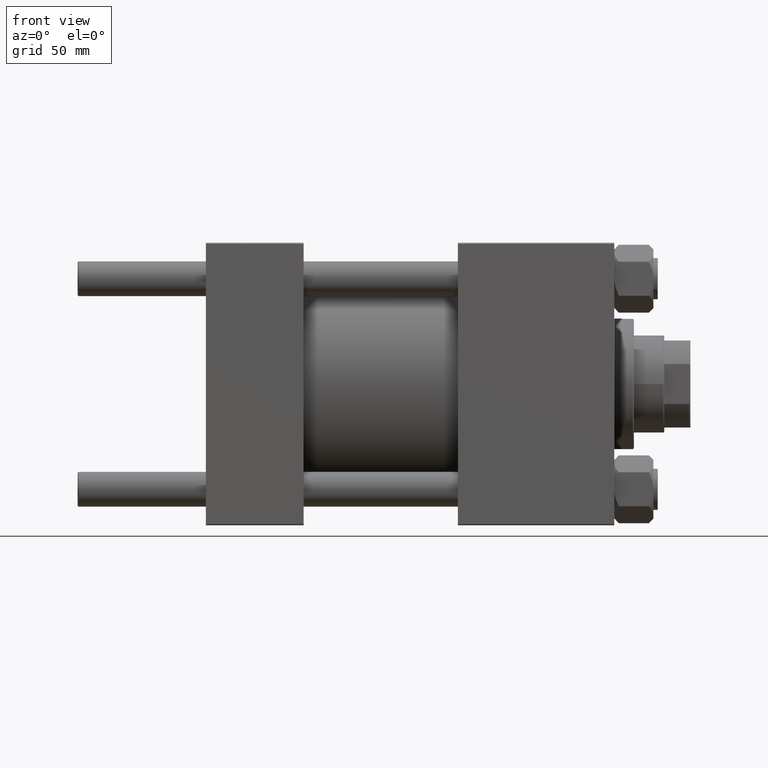
[diagram: clean part render]
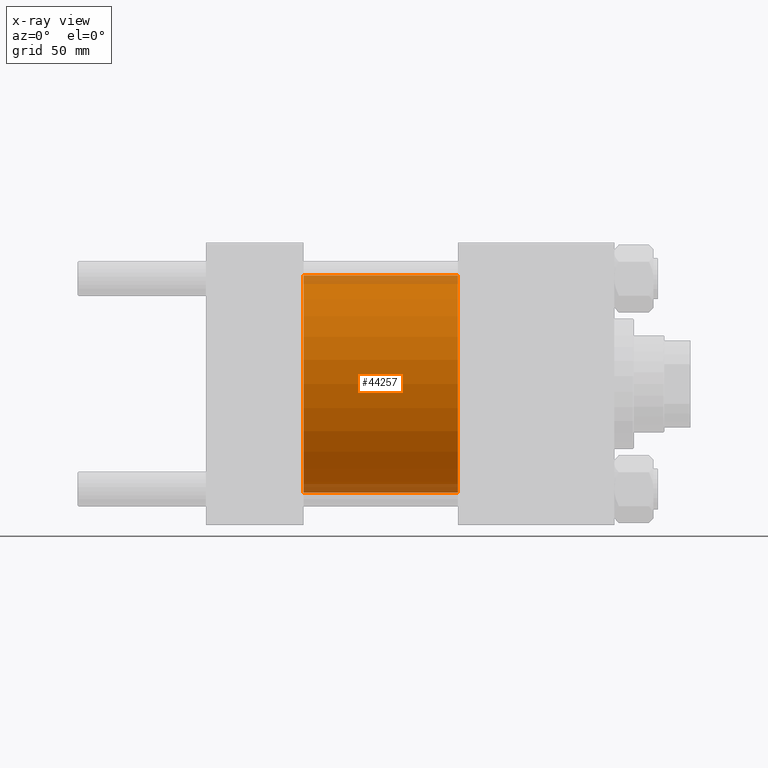
[diagram: x-ray — body ghosted, one internal face saturated and labeled with its STEP entity id]
A machine part, front view, then the same camera in x-ray: the body is ghosted and one INTERNAL B-rep face — a face not visible from any outside direction — is saturated and labeled: STEP entity #44257.
In plain terms, the highlighted cylindrical surface (partial cylindrical patch) has radius 50 mm, axis along (-1, -0, -0).
Its self-contained STEP definition (entity closure, byte-faithful):
#152 = EDGE_LOOP ( 'NONE', ( #12135, #18504, #22138, #6404 ) ) ;
#1452 = VERTEX_POINT ( 'NONE', #13096 ) ;
#1978 = CARTESIAN_POINT ( 'NONE',  ( 115.9999999999999858, 0.000000000000000000, 50.00000000000000000 ) ) ;
#3414 = CIRCLE ( 'NONE', #24475, 50.00000000000000000 ) ;
#4277 = DIRECTION ( 'NONE',  ( 0.000000000000000000, 0.000000000000000000, 1.000000000000000000 ) ) ;
#5296 = AXIS2_PLACEMENT_3D ( 'NONE', #11651, #43127, #4277 ) ;
#6404 = ORIENTED_EDGE ( 'NONE', *, *, #23721, .F. ) ;
#7746 = CARTESIAN_POINT ( 'NONE',  ( 115.9999999999999858, 0.000000000000000000, 50.00000000000000000 ) ) ;
#8776 = DIRECTION ( 'NONE',  ( 0.000000000000000000, 0.000000000000000000, -1.000000000000000000 ) ) ;
#11651 = CARTESIAN_POINT ( 'NONE',  ( 115.9999999999999858, 0.000000000000000000, 0.000000000000000000 ) ) ;
#12135 = ORIENTED_EDGE ( 'NONE', *, *, #30197, .T. ) ;
#13096 = CARTESIAN_POINT ( 'NONE',  ( 115.9999999999999858, 6.123233995736766085E-15, -50.00000000000000000 ) ) ;
#17530 = DIRECTION ( 'NONE',  ( 1.000000000000000000, 0.000000000000000000, 0.000000000000000000 ) ) ;
#17641 = DIRECTION ( 'NONE',  ( 1.000000000000000000, 0.000000000000000000, 0.000000000000000000 ) ) ;
#17766 = CARTESIAN_POINT ( 'NONE',  ( 115.9999999999999858, 0.000000000000000000, 0.000000000000000000 ) ) ;
#18504 = ORIENTED_EDGE ( 'NONE', *, *, #37499, .T. ) ;
#19462 = CARTESIAN_POINT ( 'NONE',  ( 45.00000000000000000, 0.000000000000000000, 0.000000000000000000 ) ) ;
#20066 = VECTOR ( 'NONE', #44883, 1000.000000000000000 ) ;
#22138 = ORIENTED_EDGE ( 'NONE', *, *, #32216, .F. ) ;
#23268 = DIRECTION ( 'NONE',  ( -1.000000000000000000, -0.000000000000000000, -0.000000000000000000 ) ) ;
#23512 = CARTESIAN_POINT ( 'NONE',  ( 115.9999999999999858, 6.123233995736766085E-15, -50.00000000000000000 ) ) ;
#23721 = EDGE_CURVE ( 'NONE', #35613, #50252, #41077, .T. ) ;
#24475 = AXIS2_PLACEMENT_3D ( 'NONE', #19462, #17641, #8776 ) ;
#29702 = DIRECTION ( 'NONE',  ( 0.000000000000000000, 0.000000000000000000, -1.000000000000000000 ) ) ;
#30197 = EDGE_CURVE ( 'NONE', #35613, #1452, #46304, .T. ) ;
#31214 = FACE_OUTER_BOUND ( 'NONE', #152, .T. ) ;
#32216 = EDGE_CURVE ( 'NONE', #50252, #45407, #3414, .T. ) ;
#35205 = CARTESIAN_POINT ( 'NONE',  ( 45.00000000000000000, 6.123233995736766085E-15, -50.00000000000000000 ) ) ;
#35613 = VERTEX_POINT ( 'NONE', #7746 ) ;
#36583 = AXIS2_PLACEMENT_3D ( 'NONE', #17766, #17530, #29702 ) ;
#37499 = EDGE_CURVE ( 'NONE', #1452, #45407, #39515, .T. ) ;
#37719 = CARTESIAN_POINT ( 'NONE',  ( 45.00000000000000000, 0.000000000000000000, 50.00000000000000000 ) ) ;
#38825 = CYLINDRICAL_SURFACE ( 'NONE', #5296, 50.00000000000000000 ) ;
#39515 = LINE ( 'NONE', #23512, #46564 ) ;
#41077 = LINE ( 'NONE', #1978, #20066 ) ;
#43127 = DIRECTION ( 'NONE',  ( -1.000000000000000000, -0.000000000000000000, -0.000000000000000000 ) ) ;
#44257 = ADVANCED_FACE ( 'NONE', ( #31214 ), #38825, .F. ) ;
#44883 = DIRECTION ( 'NONE',  ( -1.000000000000000000, -0.000000000000000000, -0.000000000000000000 ) ) ;
#45407 = VERTEX_POINT ( 'NONE', #35205 ) ;
#46304 = CIRCLE ( 'NONE', #36583, 50.00000000000000000 ) ;
#46564 = VECTOR ( 'NONE', #23268, 1000.000000000000000 ) ;
#50252 = VERTEX_POINT ( 'NONE', #37719 ) ;